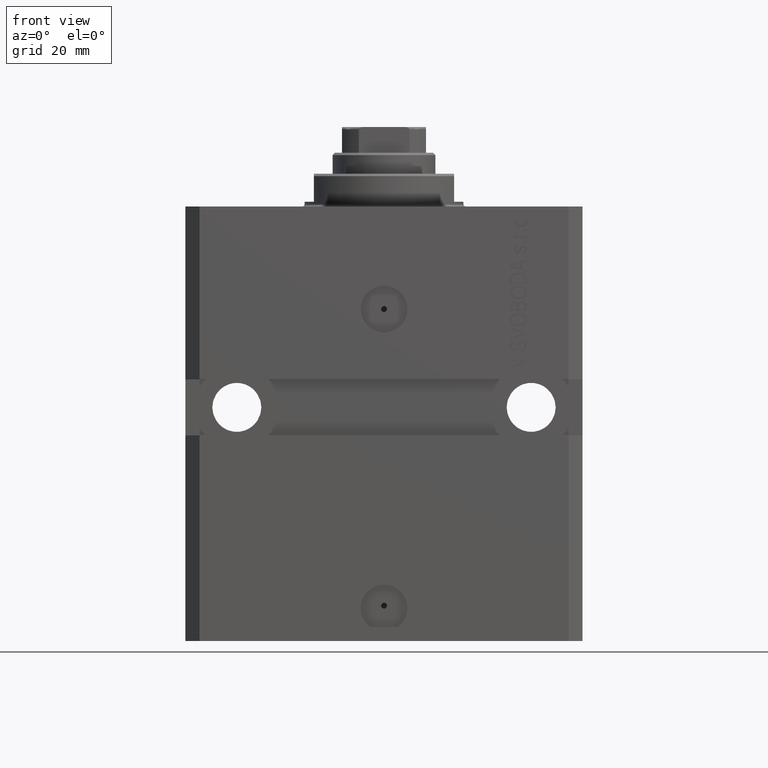
[diagram: clean part render]
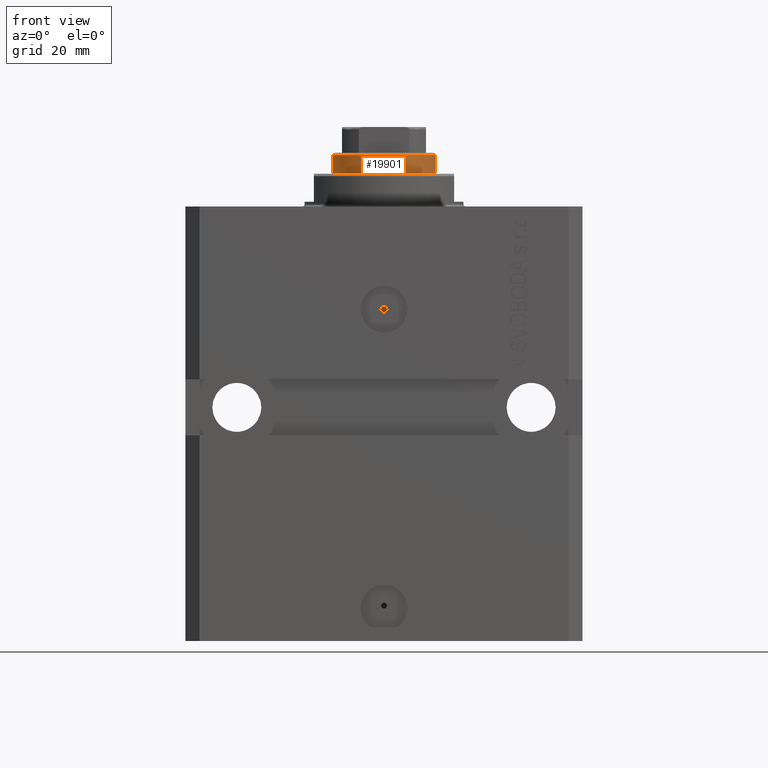
[diagram: same view with one face highlighted and labeled with its STEP entity id]
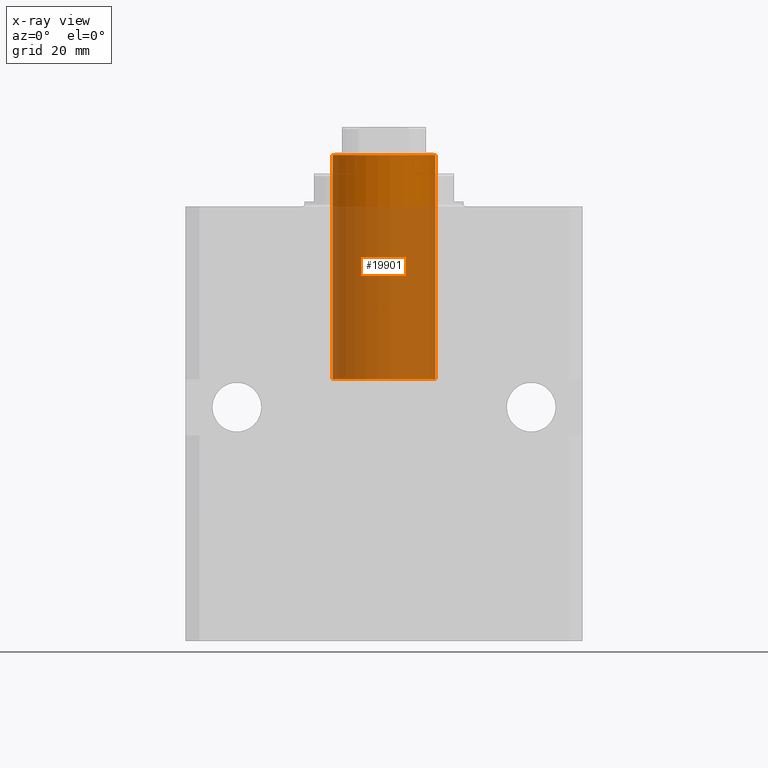
[diagram: x-ray of the same camera — body ghosted, the highlighted face saturated]
A machine part, front view. The second image highlights one B-rep face of the part: STEP entity #19901.
The next image is the same camera in x-ray: the body ghosted, the highlighted face saturated — about 77% of this face is hidden behind the body in this view.
In plain terms, the highlighted cylindrical surface (partial cylindrical patch) has radius 11 mm, axis along (-0, -0, -1).
Its self-contained STEP definition (entity closure, byte-faithful):
#3606 = EDGE_CURVE ( 'NONE', #43704, #28442, #6008, .T. ) ;
#4067 = CIRCLE ( 'NONE', #30966, 11.00000000000000000 ) ;
#4643 = AXIS2_PLACEMENT_3D ( 'NONE', #7141, #7616, #14594 ) ;
#6008 = CIRCLE ( 'NONE', #26018, 11.00000000000000000 ) ;
#6765 = LINE ( 'NONE', #35658, #11983 ) ;
#7141 = CARTESIAN_POINT ( 'NONE',  ( 0.000000000000000000, 0.000000000000000000, 93.10000000000000853 ) ) ;
#7616 = DIRECTION ( 'NONE',  ( -0.000000000000000000, -0.000000000000000000, -1.000000000000000000 ) ) ;
#7881 = VERTEX_POINT ( 'NONE', #26781 ) ;
#9403 = EDGE_CURVE ( 'NONE', #43704, #45595, #13829, .T. ) ;
#9673 = DIRECTION ( 'NONE',  ( -0.000000000000000000, -0.000000000000000000, -1.000000000000000000 ) ) ;
#10582 = ORIENTED_EDGE ( 'NONE', *, *, #36121, .T. ) ;
#11983 = VECTOR ( 'NONE', #9673, 1000.000000000000000 ) ;
#13829 = LINE ( 'NONE', #32356, #41543 ) ;
#14594 = DIRECTION ( 'NONE',  ( -1.000000000000000000, 0.000000000000000000, 0.000000000000000000 ) ) ;
#16196 = CARTESIAN_POINT ( 'NONE',  ( 0.000000000000000000, 0.000000000000000000, 92.60000000000005116 ) ) ;
#18194 = ORIENTED_EDGE ( 'NONE', *, *, #9403, .F. ) ;
#18559 = CARTESIAN_POINT ( 'NONE',  ( 11.00000000000000000, 1.347111479062088207E-15, 44.60000000000000142 ) ) ;
#19901 = ADVANCED_FACE ( 'NONE', ( #25911 ), #40349, .T. ) ;
#21293 = DIRECTION ( 'NONE',  ( -0.000000000000000000, -0.000000000000000000, -1.000000000000000000 ) ) ;
#25911 = FACE_OUTER_BOUND ( 'NONE', #28370, .T. ) ;
#26018 = AXIS2_PLACEMENT_3D ( 'NONE', #16196, #38326, #44186 ) ;
#26781 = CARTESIAN_POINT ( 'NONE',  ( -11.00000000000000000, 0.000000000000000000, 44.60000000000000142 ) ) ;
#27857 = ORIENTED_EDGE ( 'NONE', *, *, #3606, .T. ) ;
#28370 = EDGE_LOOP ( 'NONE', ( #18194, #27857, #10582, #38439 ) ) ;
#28442 = VERTEX_POINT ( 'NONE', #39949 ) ;
#30966 = AXIS2_PLACEMENT_3D ( 'NONE', #40407, #44010, #44261 ) ;
#32356 = CARTESIAN_POINT ( 'NONE',  ( 11.00000000000000000, 1.347111479062088207E-15, 93.10000000000000853 ) ) ;
#35658 = CARTESIAN_POINT ( 'NONE',  ( -11.00000000000000000, 0.000000000000000000, 93.10000000000000853 ) ) ;
#36121 = EDGE_CURVE ( 'NONE', #28442, #7881, #6765, .T. ) ;
#38326 = DIRECTION ( 'NONE',  ( 0.000000000000000000, 0.000000000000000000, -1.000000000000000000 ) ) ;
#38439 = ORIENTED_EDGE ( 'NONE', *, *, #38959, .T. ) ;
#38959 = EDGE_CURVE ( 'NONE', #7881, #45595, #4067, .T. ) ;
#39949 = CARTESIAN_POINT ( 'NONE',  ( -11.00000000000000000, 0.000000000000000000, 92.60000000000005116 ) ) ;
#40349 = CYLINDRICAL_SURFACE ( 'NONE', #4643, 11.00000000000000000 ) ;
#40407 = CARTESIAN_POINT ( 'NONE',  ( 0.000000000000000000, 0.000000000000000000, 44.60000000000000142 ) ) ;
#41543 = VECTOR ( 'NONE', #21293, 1000.000000000000000 ) ;
#41557 = CARTESIAN_POINT ( 'NONE',  ( 11.00000000000000000, 1.347111479062088207E-15, 92.60000000000005116 ) ) ;
#43704 = VERTEX_POINT ( 'NONE', #41557 ) ;
#44010 = DIRECTION ( 'NONE',  ( 0.000000000000000000, 0.000000000000000000, 1.000000000000000000 ) ) ;
#44186 = DIRECTION ( 'NONE',  ( 1.000000000000000000, 0.000000000000000000, 0.000000000000000000 ) ) ;
#44261 = DIRECTION ( 'NONE',  ( 1.000000000000000000, 0.000000000000000000, 0.000000000000000000 ) ) ;
#45595 = VERTEX_POINT ( 'NONE', #18559 ) ;